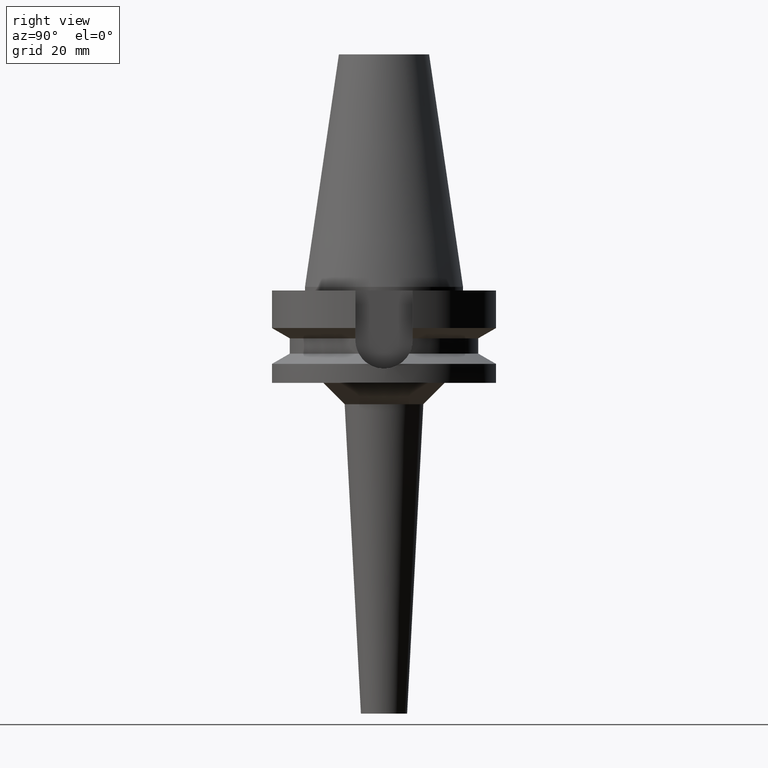
[diagram: clean part render]
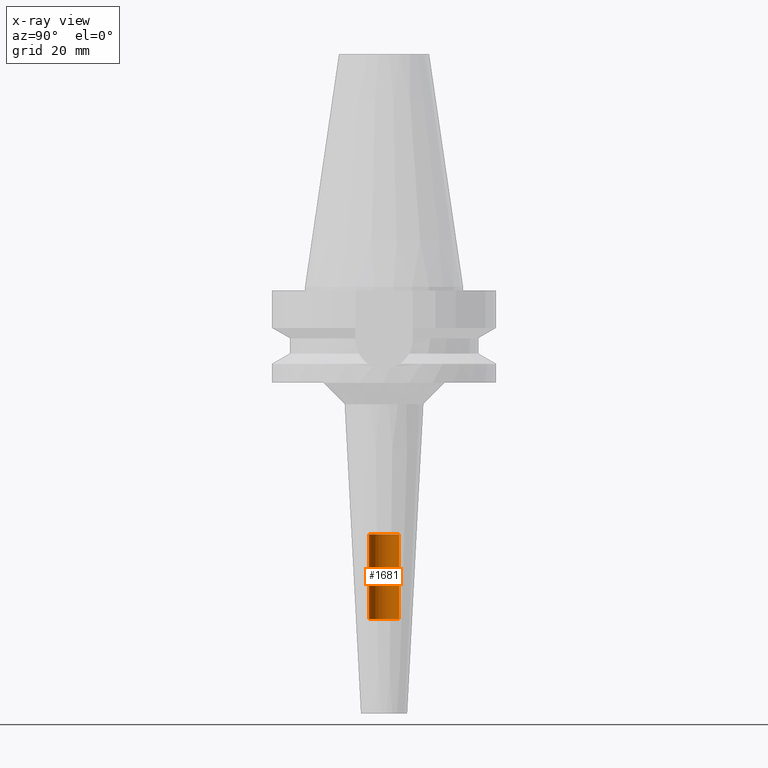
[diagram: x-ray — body ghosted, one internal face saturated and labeled with its STEP entity id]
A machine part, right view, then the same camera in x-ray: the body is ghosted and one INTERNAL B-rep face — a face not visible from any outside direction — is saturated and labeled: STEP entity #1681.
In plain terms, the highlighted cylindrical surface (edge-blend (fillet) strip) has radius 4.25 mm, axis along (0, 0, -1).
Its self-contained STEP definition (entity closure, byte-faithful):
#749=CARTESIAN_POINT('',(0.E0,2.139090564071E-14,-9.35E1));
#750=DIRECTION('',(0.E0,0.E0,-1.E0));
#751=DIRECTION('',(0.E0,-1.E0,0.E0));
#752=AXIS2_PLACEMENT_3D('',#749,#750,#751);
#781=DIRECTION('',(0.E0,0.E0,1.E0));
#782=VECTOR('',#781,2.39E1);
#783=CARTESIAN_POINT('',(0.E0,-4.25E0,-9.35E1));
#784=LINE('',#783,#782);
#788=DIRECTION('',(0.E0,0.E0,1.E0));
#789=VECTOR('',#788,2.39E1);
#790=CARTESIAN_POINT('',(0.E0,4.25E0,-9.35E1));
#791=LINE('',#790,#789);
#819=CARTESIAN_POINT('',(0.E0,2.139090564071E-14,-6.96E1));
#820=DIRECTION('',(0.E0,0.E0,1.E0));
#821=DIRECTION('',(0.E0,1.E0,0.E0));
#822=AXIS2_PLACEMENT_3D('',#819,#820,#821);
#995=CARTESIAN_POINT('',(0.E0,-4.25E0,-6.96E1));
#996=CARTESIAN_POINT('',(0.E0,4.25E0,-6.96E1));
#997=VERTEX_POINT('',#995);
#998=VERTEX_POINT('',#996);
#999=CARTESIAN_POINT('',(0.E0,4.25E0,-9.35E1));
#1000=VERTEX_POINT('',#999);
#1001=CARTESIAN_POINT('',(0.E0,-4.25E0,-9.35E1));
#1002=VERTEX_POINT('',#1001);
#1667=CARTESIAN_POINT('',(0.E0,2.139090564071E-14,7.467E1));
#1668=DIRECTION('',(0.E0,0.E0,-1.E0));
#1669=DIRECTION('',(0.E0,-1.E0,0.E0));
#1670=AXIS2_PLACEMENT_3D('',#1667,#1668,#1669);
#1671=CYLINDRICAL_SURFACE('',#1670,4.25E0);
#1673=ORIENTED_EDGE('',*,*,#1672,.F.);
#1674=ORIENTED_EDGE('',*,*,#1656,.F.);
#1676=ORIENTED_EDGE('',*,*,#1675,.T.);
#1678=ORIENTED_EDGE('',*,*,#1677,.F.);
#1679=EDGE_LOOP('',(#1673,#1674,#1676,#1678));
#1680=FACE_OUTER_BOUND('',#1679,.F.);
#753=CIRCLE('',#752,4.25E0);
#823=CIRCLE('',#822,4.25E0);
#1656=EDGE_CURVE('',#1002,#1000,#753,.T.);
#1672=EDGE_CURVE('',#1000,#998,#791,.T.);
#1675=EDGE_CURVE('',#1002,#997,#784,.T.);
#1677=EDGE_CURVE('',#998,#997,#823,.T.);
#1681=ADVANCED_FACE('',(#1680),#1671,.F.);